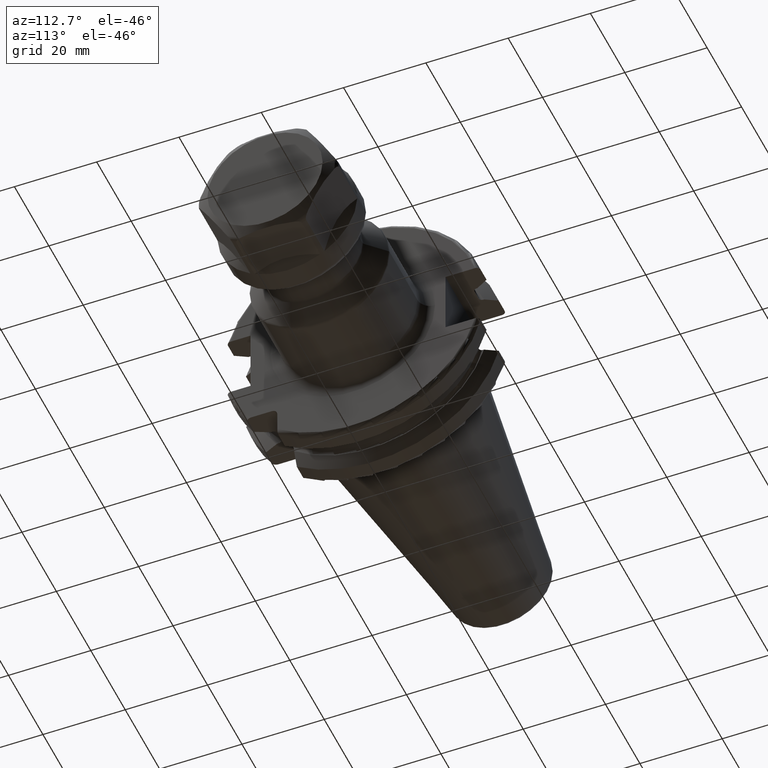
[diagram: clean part render]
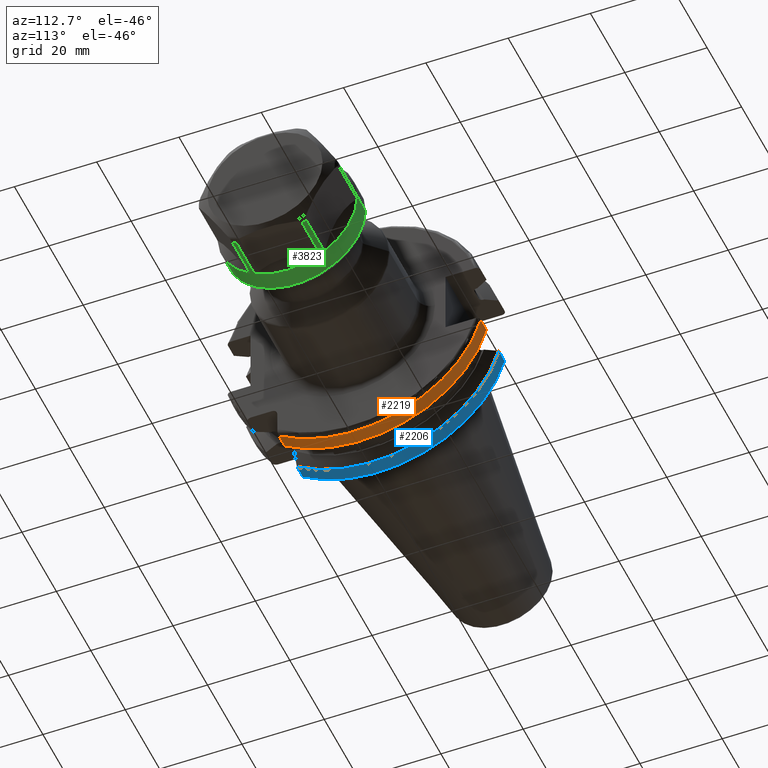
[diagram: same view with three faces highlighted in distinct colors, each labeled with its STEP entity id]
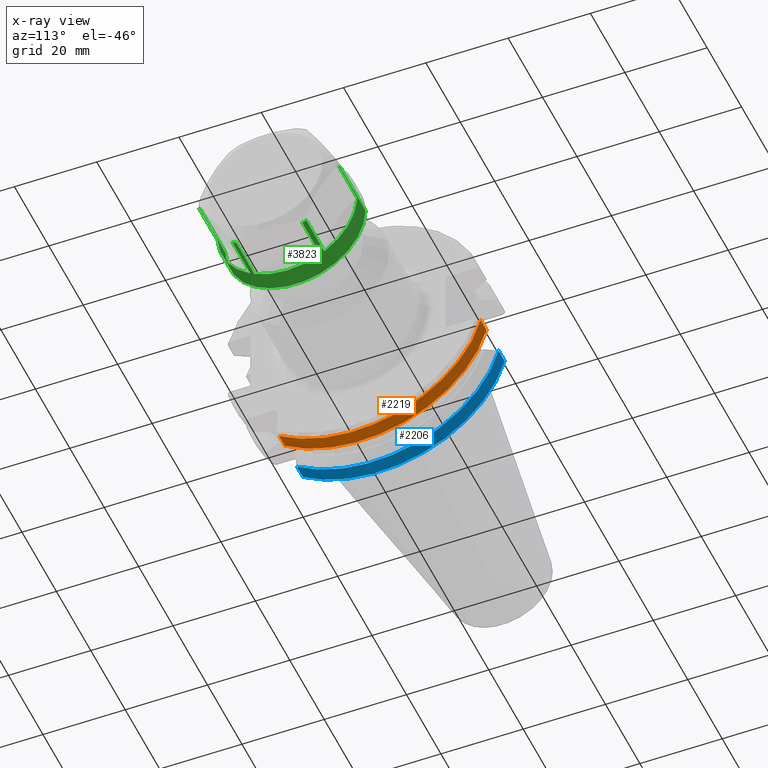
[diagram: x-ray of the same camera — body ghosted, the three highlighted faces saturated]
A machine part, auxiliary view with three faces highlighted in distinct colors.
The next image is the same camera in x-ray (body ghosted, the three faces saturated) — at least one of them is partly hidden behind the body in this view.
Their STEP definitions:

[orange] entity #2219 — the highlighted cylindrical surface (partial cylindrical patch) has radius 31.7625 mm, axis along (1, 0, 0).
#602=DIRECTION('',(1.E0,0.E0,0.E0));
#603=VECTOR('',#602,3.345946479578E0);
#604=CARTESIAN_POINT('',(1.470405352042E1,3.071231684927E1,-8.1E0));
#605=LINE('',#604,#603);
#606=CARTESIAN_POINT('',(1.470405352042E1,0.E0,0.E0));
#607=DIRECTION('',(1.E0,0.E0,0.E0));
#608=DIRECTION('',(0.E0,-5.777253049980E-1,-8.162312613254E-1));
#609=AXIS2_PLACEMENT_3D('',#606,#607,#608);
#611=DIRECTION('',(1.E0,0.E0,0.E0));
#612=VECTOR('',#611,3.345946479578E0);
#613=CARTESIAN_POINT('',(1.470405352042E1,-1.835E1,-2.592554543785E1));
#614=LINE('',#613,#612);
#615=CARTESIAN_POINT('',(1.805E1,0.E0,0.E0));
#616=DIRECTION('',(-1.E0,0.E0,0.E0));
#617=DIRECTION('',(0.E0,9.669363825036E-1,-2.550177095632E-1));
#618=AXIS2_PLACEMENT_3D('',#615,#616,#617);
#688=CARTESIAN_POINT('',(1.470405352042E1,3.071231684927E1,-8.1E0));
#700=CARTESIAN_POINT('',(1.470405352042E1,-1.835E1,-2.592554543785E1));
#1398=VERTEX_POINT('',#688);
#1448=CARTESIAN_POINT('',(1.805E1,3.071231684927E1,-8.1E0));
#1449=VERTEX_POINT('',#1448);
#1465=CARTESIAN_POINT('',(1.805E1,-1.835E1,-2.592554543785E1));
#1466=VERTEX_POINT('',#1465);
#1502=VERTEX_POINT('',#700);
#2207=CARTESIAN_POINT('',(-7.2615E1,0.E0,0.E0));
#2208=DIRECTION('',(1.E0,0.E0,0.E0));
#2209=DIRECTION('',(0.E0,-1.E0,0.E0));
#2210=AXIS2_PLACEMENT_3D('',#2207,#2208,#2209);
#2211=CYLINDRICAL_SURFACE('',#2210,3.17625E1);
#2212=ORIENTED_EDGE('',*,*,#1818,.F.);
#2214=ORIENTED_EDGE('',*,*,#2213,.F.);
#2215=ORIENTED_EDGE('',*,*,#1745,.T.);
#2216=ORIENTED_EDGE('',*,*,#1779,.F.);
#2217=EDGE_LOOP('',(#2212,#2214,#2215,#2216));
#2218=FACE_OUTER_BOUND('',#2217,.F.);
#2219=ADVANCED_FACE('',(#2218),#2211,.T.);
#610=CIRCLE('',#609,3.17625E1);
#619=CIRCLE('',#618,3.17625E1);
#1745=EDGE_CURVE('',#1502,#1466,#614,.T.);
#1779=EDGE_CURVE('',#1449,#1466,#619,.T.);
#1818=EDGE_CURVE('',#1398,#1449,#605,.T.);
#2213=EDGE_CURVE('',#1502,#1398,#610,.T.);

[blue] entity #2206 — the highlighted cylindrical surface (partial cylindrical patch) has radius 31.7625 mm, axis along (1, 0, 0).
#557=CARTESIAN_POINT('',(4.2E0,0.E0,0.E0));
#558=DIRECTION('',(-1.E0,0.E0,0.E0));
#559=DIRECTION('',(0.E0,9.669363825036E-1,-2.550177095632E-1));
#560=AXIS2_PLACEMENT_3D('',#557,#558,#559);
#589=DIRECTION('',(1.E0,0.E0,0.E0));
#590=VECTOR('',#589,3.445946479578E0);
#591=CARTESIAN_POINT('',(4.2E0,3.071231684927E1,-8.1E0));
#592=LINE('',#591,#590);
#593=DIRECTION('',(1.E0,0.E0,0.E0));
#594=VECTOR('',#593,3.445946479578E0);
#595=CARTESIAN_POINT('',(4.2E0,-1.835E1,-2.592554543785E1));
#596=LINE('',#595,#594);
#597=CARTESIAN_POINT('',(7.645946479578E0,0.E0,0.E0));
#598=DIRECTION('',(1.E0,0.E0,0.E0));
#599=DIRECTION('',(0.E0,-5.777253049980E-1,-8.162312613254E-1));
#600=AXIS2_PLACEMENT_3D('',#597,#598,#599);
#656=CARTESIAN_POINT('',(7.645946479578E0,3.071231684927E1,-8.1E0));
#663=CARTESIAN_POINT('',(7.645946479578E0,-1.835E1,-2.592554543785E1));
#1400=VERTEX_POINT('',#656);
#1446=CARTESIAN_POINT('',(4.2E0,3.071231684927E1,-8.1E0));
#1447=VERTEX_POINT('',#1446);
#1467=CARTESIAN_POINT('',(4.2E0,-1.835E1,-2.592554543785E1));
#1468=VERTEX_POINT('',#1467);
#1503=VERTEX_POINT('',#663);
#2194=CARTESIAN_POINT('',(-7.2615E1,0.E0,0.E0));
#2195=DIRECTION('',(1.E0,0.E0,0.E0));
#2196=DIRECTION('',(0.E0,-1.E0,0.E0));
#2197=AXIS2_PLACEMENT_3D('',#2194,#2195,#2196);
#2198=CYLINDRICAL_SURFACE('',#2197,3.17625E1);
#2199=ORIENTED_EDGE('',*,*,#1827,.F.);
#2200=ORIENTED_EDGE('',*,*,#2175,.T.);
#2201=ORIENTED_EDGE('',*,*,#1761,.T.);
#2203=ORIENTED_EDGE('',*,*,#2202,.T.);
#2204=EDGE_LOOP('',(#2199,#2200,#2201,#2203));
#2205=FACE_OUTER_BOUND('',#2204,.F.);
#2206=ADVANCED_FACE('',(#2205),#2198,.T.);
#561=CIRCLE('',#560,3.17625E1);
#601=CIRCLE('',#600,3.17625E1);
#1761=EDGE_CURVE('',#1468,#1503,#596,.T.);
#1827=EDGE_CURVE('',#1447,#1400,#592,.T.);
#2175=EDGE_CURVE('',#1447,#1468,#561,.T.);
#2202=EDGE_CURVE('',#1503,#1400,#601,.T.);

[green] entity #3823 — the highlighted cylindrical surface (partial cylindrical patch) has radius 17 mm, axis along (1, 0, 0).
#3232=DIRECTION('',(9.999999998846E-1,1.315636517800E-5,7.598885825721E-6));
#3233=VECTOR('',#3232,1.053639725432E1);
#3234=CARTESIAN_POINT('',(6.009864102844E0,-1.699051967746E1,
-5.718768346042E-1));
#3235=LINE('',#3234,#3233);
#3236=DIRECTION('',(-1.E0,0.E0,0.E0));
#3237=VECTOR('',#3236,1.053628552473E1);
#3238=CARTESIAN_POINT('',(1.654626135594E1,-8.990381056767E0,
-1.442820323028E1));
#3239=LINE('',#3238,#3237);
#3240=CARTESIAN_POINT('',(6.009993566245E0,-2.034304306681E-4,
-1.276242100490E-4));
#3241=DIRECTION('',(-1.E0,0.E0,0.E0));
#3242=DIRECTION('',(0.E0,-5.288406942958E-1,-8.487211085255E-1));
#3243=AXIS2_PLACEMENT_3D('',#3240,#3241,#3242);
#3245=CARTESIAN_POINT('',(1.654626135594E1,0.E0,0.E0));
#3246=DIRECTION('',(-1.E0,0.E0,0.E0));
#3247=DIRECTION('',(0.E0,-4.705882352941E-1,-8.823529411765E-1));
#3248=AXIS2_PLACEMENT_3D('',#3245,#3246,#3247);
#3250=CARTESIAN_POINT('',(1.654626135594E1,0.E0,0.E0));
#3251=DIRECTION('',(-1.E0,0.E0,0.E0));
#3252=DIRECTION('',(0.E0,5.288459445157E-1,-8.487178370750E-1));
#3253=AXIS2_PLACEMENT_3D('',#3250,#3251,#3252);
#3255=CARTESIAN_POINT('',(1.654626135594E1,0.E0,0.E0));
#3256=DIRECTION('',(-1.E0,0.E0,0.E0));
#3257=DIRECTION('',(0.E0,1.E0,0.E0));
#3258=AXIS2_PLACEMENT_3D('',#3255,#3256,#3257);
#3260=DIRECTION('',(-1.E0,0.E0,4.859249806958E-11));
#3261=VECTOR('',#3260,1.529626135594E1);
#3262=CARTESIAN_POINT('',(1.654626135594E1,1.7E1,-1.152775558652E-10));
#3263=LINE('',#3262,#3261);
#3264=CARTESIAN_POINT('',(1.25E0,0.E0,0.E0));
#3265=DIRECTION('',(-1.E0,0.E0,0.E0));
#3266=DIRECTION('',(0.E0,1.E0,0.E0));
#3267=AXIS2_PLACEMENT_3D('',#3264,#3265,#3266);
#3269=DIRECTION('',(-1.E0,0.E0,-4.859253938540E-11));
#3270=VECTOR('',#3269,1.529626135594E1);
#3271=CARTESIAN_POINT('',(1.654626135594E1,-1.7E1,1.152775494066E-10));
#3272=LINE('',#3271,#3270);
#3273=CARTESIAN_POINT('',(1.654626135594E1,0.E0,0.E0));
#3274=DIRECTION('',(-1.E0,0.E0,0.E0));
#3275=DIRECTION('',(0.E0,-9.994341798098E-1,-3.363510410144E-2));
#3276=AXIS2_PLACEMENT_3D('',#3273,#3274,#3275);
#3278=CARTESIAN_POINT('',(1.654626135594E1,8.990381056767E0,-1.442820323028E1));
#3296=CARTESIAN_POINT('',(1.654626135594E1,8.E0,-1.5E1));
#3306=CARTESIAN_POINT('',(1.654626135594E1,-8.990381056767E0,
-1.442820323028E1));
#3308=CARTESIAN_POINT('',(1.654626135594E1,-8.E0,-1.5E1));
#3318=CARTESIAN_POINT('',(1.654626135594E1,-1.699038105677E1,
-5.717967697245E-1));
#3386=CARTESIAN_POINT('',(1.654626135594E1,1.699038105677E1,
-5.717967697245E-1));
#3416=DIRECTION('',(9.999999992374E-1,3.427788848595E-5,-1.871268783821E-5));
#3417=VECTOR('',#3416,1.053590077872E1);
#3418=CARTESIAN_POINT('',(6.010360585263E0,8.990019908335E0,-1.442800607525E1));
#3419=LINE('',#3418,#3417);
#3420=DIRECTION('',(-1.E0,0.E0,0.E0));
#3421=VECTOR('',#3420,1.053616719791E1);
#3422=CARTESIAN_POINT('',(1.654626135594E1,1.699038105677E1,
-5.717967697245E-1));
#3423=LINE('',#3422,#3421);
#3424=CARTESIAN_POINT('',(6.010022197914E0,-7.337103904704E-4,
4.120040700872E-4));
#3425=DIRECTION('',(-1.E0,0.E0,0.E0));
#3426=DIRECTION('',(0.E0,9.994334137081E-1,-3.365786035727E-2));
#3427=AXIS2_PLACEMENT_3D('',#3424,#3425,#3426);
#3447=DIRECTION('',(1.E0,-5.660973854207E-8,2.603253999531E-7));
#3448=VECTOR('',#3447,1.053619155998E1);
#3449=CARTESIAN_POINT('',(6.010069795969E0,-7.999999403549E0,
-1.500000274284E1));
#3450=LINE('',#3449,#3448);
#3451=DIRECTION('',(-1.E0,0.E0,0.E0));
#3452=VECTOR('',#3451,1.053618977066E1);
#3453=CARTESIAN_POINT('',(1.654626135594E1,8.E0,-1.5E1));
#3454=LINE('',#3453,#3452);
#3455=CARTESIAN_POINT('',(6.010015861223E0,7.568525536638E-7,
6.073012199916E-4));
#3456=DIRECTION('',(-1.E0,0.E0,0.E0));
#3457=DIRECTION('',(0.E0,4.705733677050E-1,-8.823608703965E-1));
#3458=AXIS2_PLACEMENT_3D('',#3455,#3456,#3457);
#3658=CARTESIAN_POINT('',(1.25E0,1.7E1,0.E0));
#3659=CARTESIAN_POINT('',(1.25E0,-1.7E1,0.E0));
#3660=VERTEX_POINT('',#3658);
#3661=VERTEX_POINT('',#3659);
#3666=CARTESIAN_POINT('',(1.654626135594E1,1.7E1,-1.152775558652E-10));
#3667=VERTEX_POINT('',#3666);
#3668=CARTESIAN_POINT('',(1.654626135594E1,-1.7E1,1.152775494066E-10));
#3669=VERTEX_POINT('',#3668);
#3688=VERTEX_POINT('',#3306);
#3689=VERTEX_POINT('',#3318);
#3690=VERTEX_POINT('',#3386);
#3691=VERTEX_POINT('',#3278);
#3692=VERTEX_POINT('',#3296);
#3693=VERTEX_POINT('',#3308);
#3698=CARTESIAN_POINT('',(6.009993566245E0,-8.990371677756E0,
-1.442818817817E1));
#3699=CARTESIAN_POINT('',(6.009993566245E0,-1.699035504402E1,
-5.717958944727E-1));
#3700=VERTEX_POINT('',#3698);
#3701=VERTEX_POINT('',#3699);
#3702=CARTESIAN_POINT('',(6.010015861223E0,8.000026222654E0,-1.500004916947E1));
#3703=CARTESIAN_POINT('',(6.010015861223E0,-8.000025887464E0,
-1.500004854096E1));
#3704=VERTEX_POINT('',#3702);
#3705=VERTEX_POINT('',#3703);
#3706=CARTESIAN_POINT('',(6.010022197914E0,1.699045297670E1,
-5.717991917679E-1));
#3707=CARTESIAN_POINT('',(6.010022197914E0,8.990424116185E0,-1.442827233047E1));
#3708=VERTEX_POINT('',#3706);
#3709=VERTEX_POINT('',#3707);
#3787=CARTESIAN_POINT('',(-9.5E-1,0.E0,0.E0));
#3788=DIRECTION('',(1.E0,0.E0,0.E0));
#3789=DIRECTION('',(0.E0,-1.E0,0.E0));
#3790=AXIS2_PLACEMENT_3D('',#3787,#3788,#3789);
#3791=CYLINDRICAL_SURFACE('',#3790,1.7E1);
#3792=ORIENTED_EDGE('',*,*,#3781,.F.);
#3793=ORIENTED_EDGE('',*,*,#3771,.F.);
#3795=ORIENTED_EDGE('',*,*,#3794,.F.);
#3797=ORIENTED_EDGE('',*,*,#3796,.F.);
#3799=ORIENTED_EDGE('',*,*,#3798,.F.);
#3801=ORIENTED_EDGE('',*,*,#3800,.F.);
#3803=ORIENTED_EDGE('',*,*,#3802,.F.);
#3805=ORIENTED_EDGE('',*,*,#3804,.F.);
#3807=ORIENTED_EDGE('',*,*,#3806,.F.);
#3809=ORIENTED_EDGE('',*,*,#3808,.F.);
#3811=ORIENTED_EDGE('',*,*,#3810,.F.);
#3813=ORIENTED_EDGE('',*,*,#3812,.T.);
#3815=ORIENTED_EDGE('',*,*,#3814,.T.);
#3817=ORIENTED_EDGE('',*,*,#3816,.F.);
#3819=ORIENTED_EDGE('',*,*,#3818,.F.);
#3820=ORIENTED_EDGE('',*,*,#3764,.F.);
#3821=EDGE_LOOP('',(#3792,#3793,#3795,#3797,#3799,#3801,#3803,#3805,#3807,#3809,
#3811,#3813,#3815,#3817,#3819,#3820));
#3822=FACE_OUTER_BOUND('',#3821,.F.);
#3823=ADVANCED_FACE('',(#3822),#3791,.T.);
#3244=CIRCLE('',#3243,1.699976636498E1);
#3249=CIRCLE('',#3248,1.7E1);
#3254=CIRCLE('',#3253,1.7E1);
#3259=CIRCLE('',#3258,1.7E1);
#3268=CIRCLE('',#3267,1.7E1);
#3277=CIRCLE('',#3276,1.7E1);
#3428=CIRCLE('',#3427,1.700081911815E1);
#3459=CIRCLE('',#3458,1.700059122517E1);
#3764=EDGE_CURVE('',#3701,#3689,#3235,.T.);
#3771=EDGE_CURVE('',#3688,#3700,#3239,.T.);
#3781=EDGE_CURVE('',#3700,#3701,#3244,.T.);
#3794=EDGE_CURVE('',#3693,#3688,#3249,.T.);
#3796=EDGE_CURVE('',#3705,#3693,#3450,.T.);
#3798=EDGE_CURVE('',#3704,#3705,#3459,.T.);
#3800=EDGE_CURVE('',#3692,#3704,#3454,.T.);
#3802=EDGE_CURVE('',#3691,#3692,#3254,.T.);
#3804=EDGE_CURVE('',#3709,#3691,#3419,.T.);
#3806=EDGE_CURVE('',#3708,#3709,#3428,.T.);
#3808=EDGE_CURVE('',#3690,#3708,#3423,.T.);
#3810=EDGE_CURVE('',#3667,#3690,#3259,.T.);
#3812=EDGE_CURVE('',#3667,#3660,#3263,.T.);
#3814=EDGE_CURVE('',#3660,#3661,#3268,.T.);
#3816=EDGE_CURVE('',#3669,#3661,#3272,.T.);
#3818=EDGE_CURVE('',#3689,#3669,#3277,.T.);